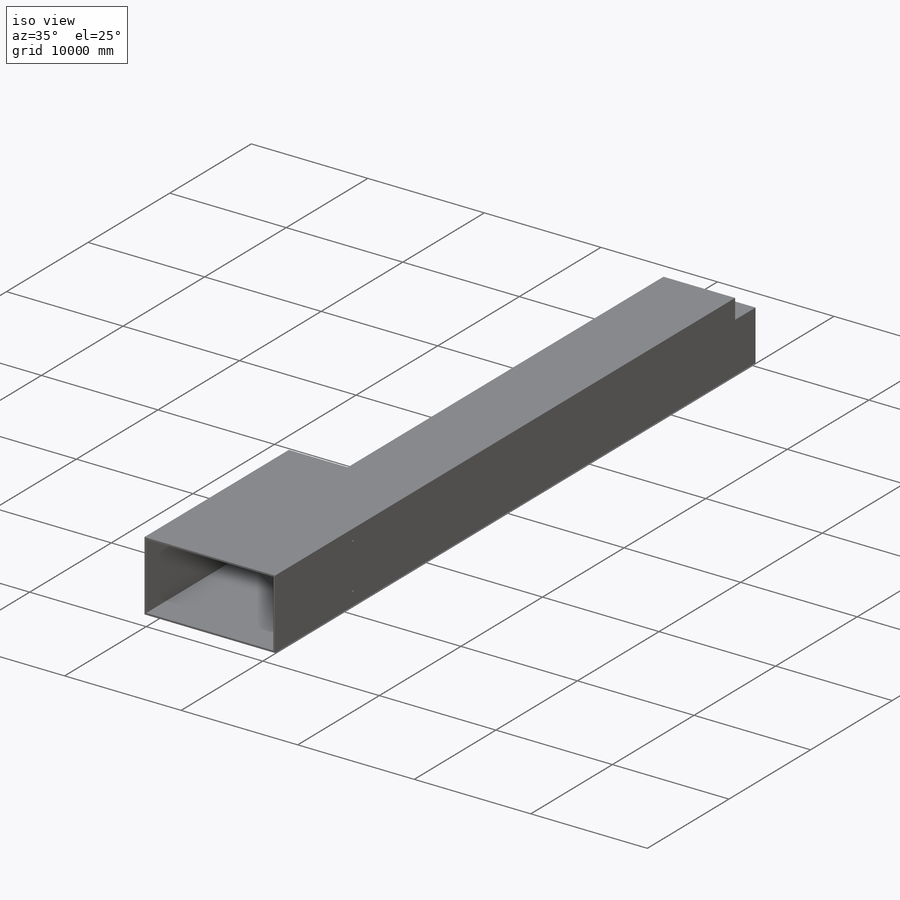
[diagram: iso view]
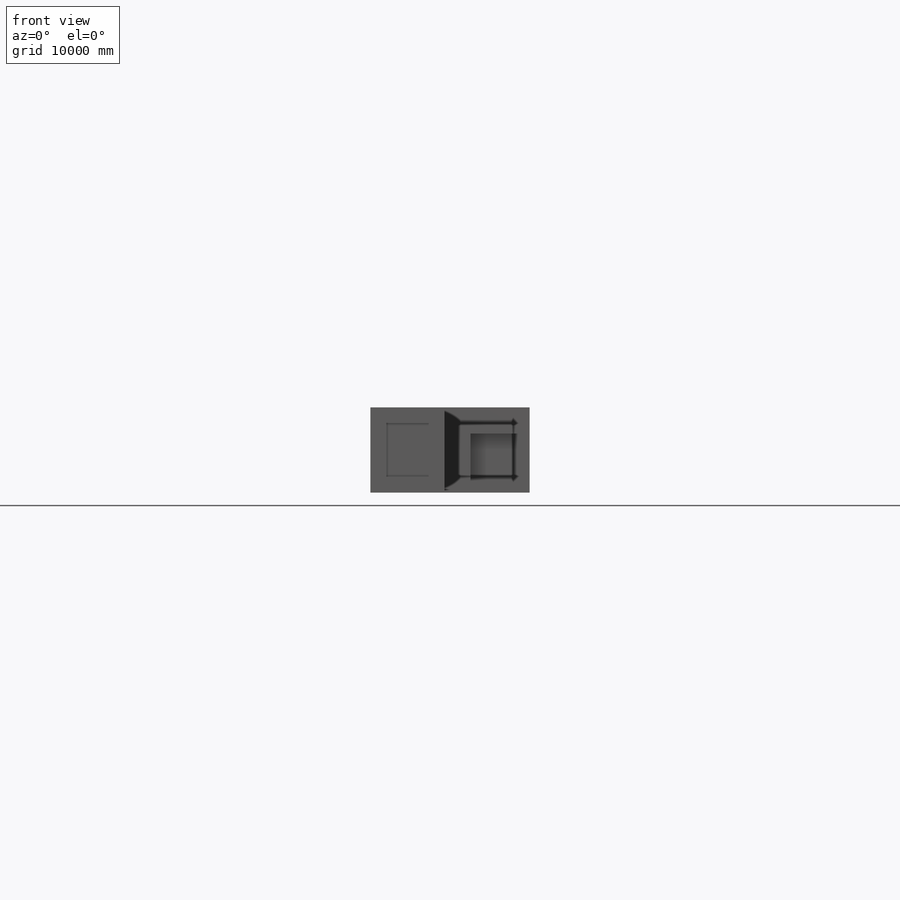
[diagram: front view]
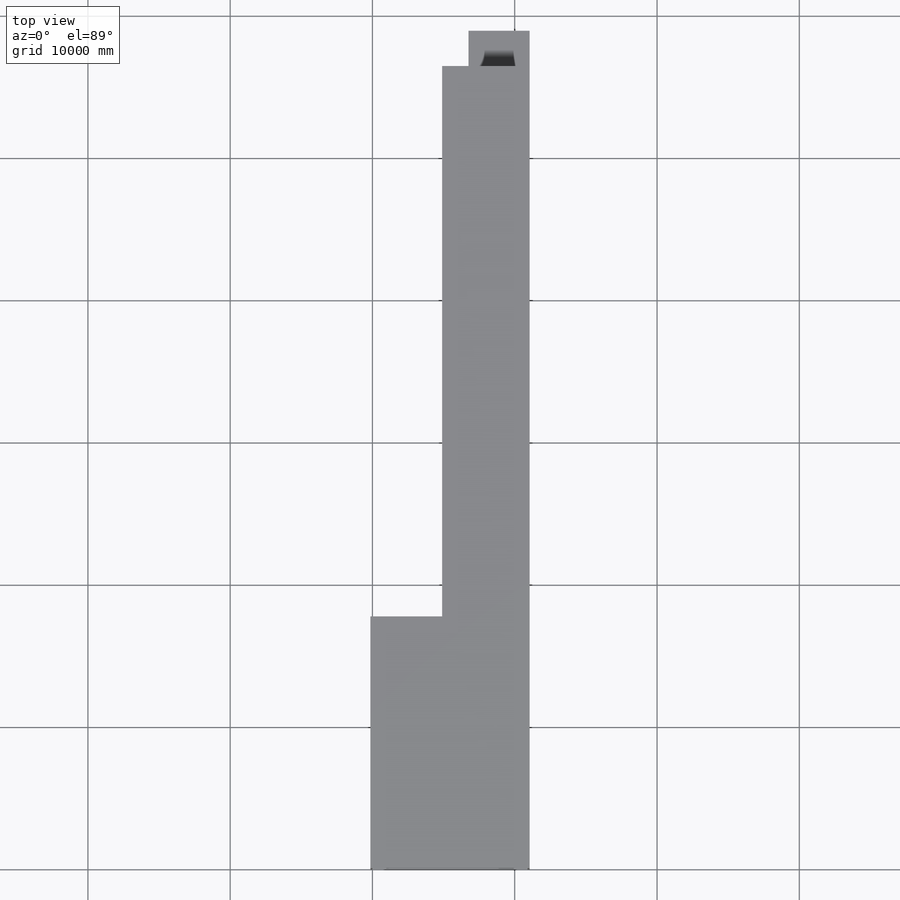
[diagram: top view]
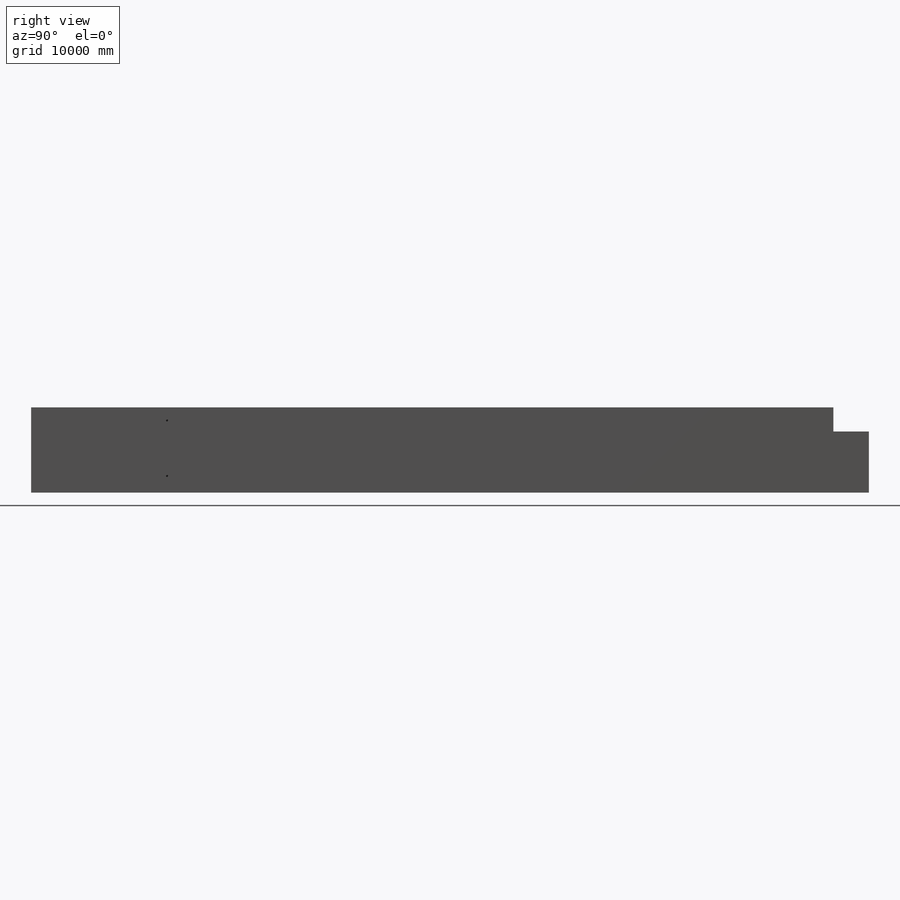
[diagram: right view]
SOLIDWORKS PART (.sldprt)
format: sldprt  version: not decoded by parser v0  size: 317,952 bytes
history: native  units: mm
features: sketch x8, extrude x6, cut_extrude x2, material x1 (+20 scaffold rows collapsed)
feature tree (37):
  scaffold x20  (default folders/planes/origin — collapsed)
  material  "Material <not specified>"
  sketch  "Sketch1"  dims[D1=0.0mm D2=150.0mm]
  extrude  "Extrude1"  Depth=150mm
  sketch  "Sketch2"  dims[D1=0.0mm D2=150.0mm]
  extrude  "Extrude2"  [1 undecoded]
  sketch  "Sketch3"  dims[D1=0.0mm D2=150.0mm]
  extrude  "Extrude3"  [1 undecoded]
  sketch  "Sketch4"  dims[D1=0.0mm]
  extrude  "Extrude4"  Depth=150mm
  sketch  "Sketch5"  dims[D1=0.0mm]
  extrude  "Extrude5"  Depth=150mm
  sketch  "Sketch6"  dims[D2=150.0mm D1=0.0mm]
  extrude  "Extrude7"  Depth=150mm
  sketch  "Sketch7"  dims[D1=150.0mm D2=150.0mm D3=9560.0mm D4=9560.0mm D5=930.0mm D6=1170.0mm]
  cut_extrude  "Cut-Extrude1"  [1 undecoded]
  sketch  "Sketch8"  dims[D3=100.0mm D1=22960.0mm D2=3000.0mm]
  cut_extrude  "Cut-Extrude2"  [1 undecoded]
decode coverage: 12 of 16 modeling features carry decoded parameters
note: 4 parameter values undecoded
summary: no parameter record found for 4 features
note: suppression state not decoded; provenance and decode notes live in map.json
